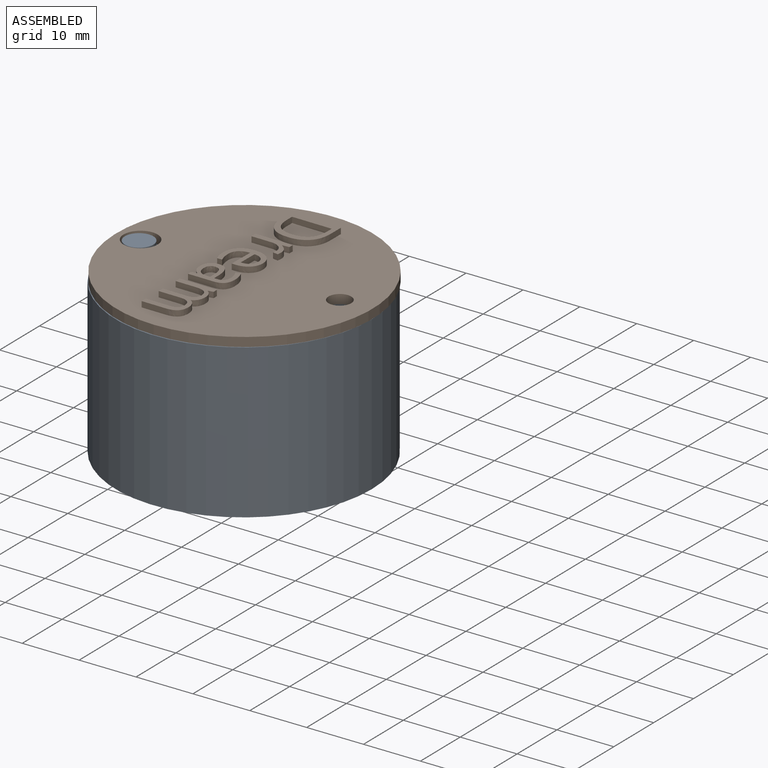
[diagram: assembled view]
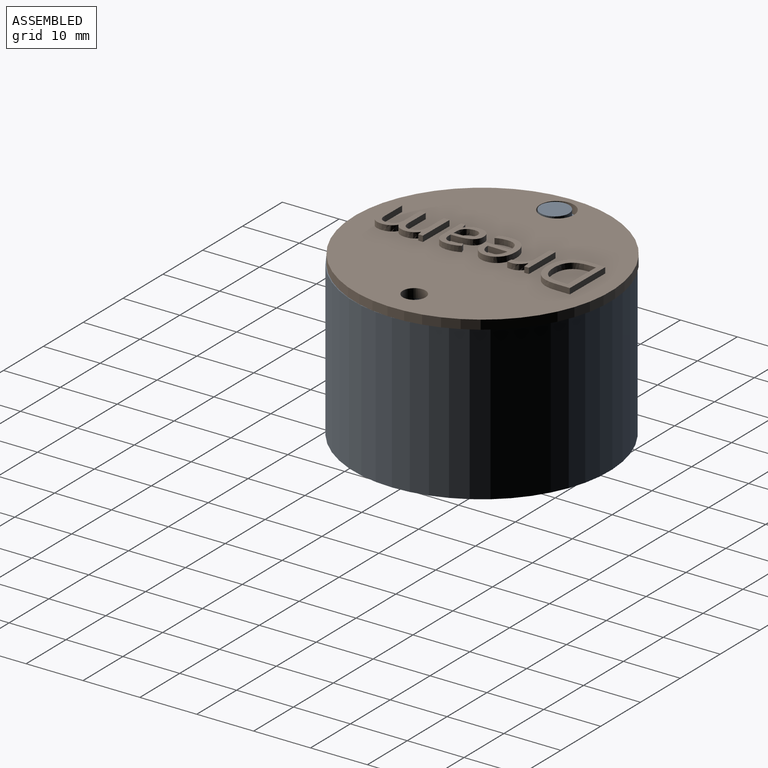
[diagram: assembled view, second angle]
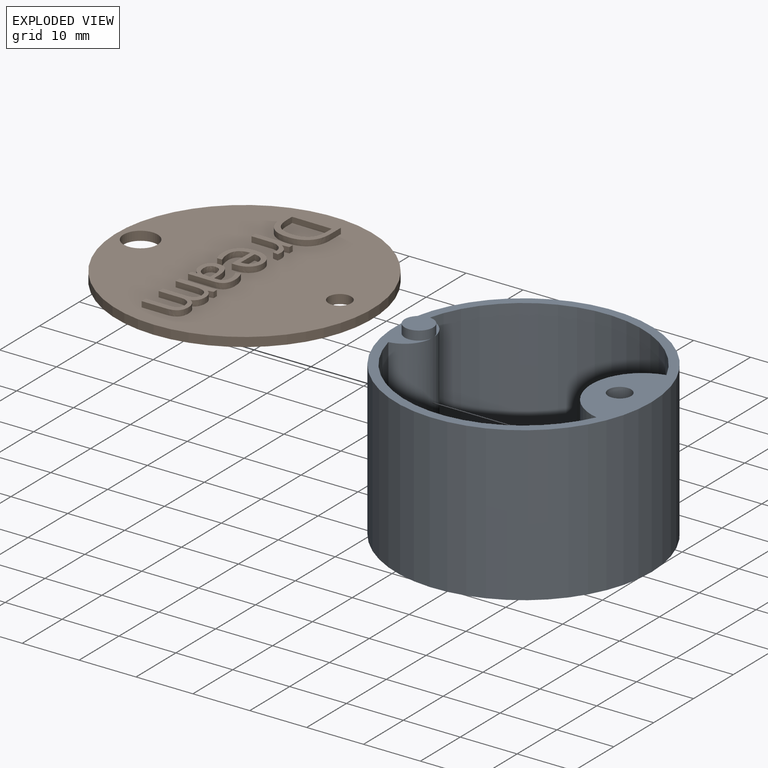
[diagram: exploded view]
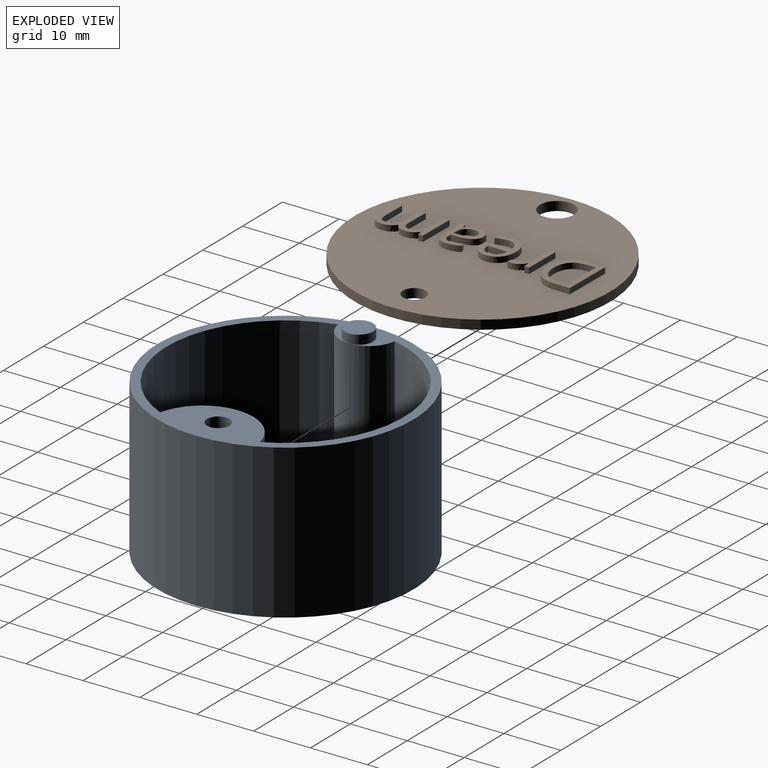
[diagram: exploded view, second angle]
ASSEMBLY  parts=2 mates=2
PART A: 13 faces, bbox 55x55x38.6 mm
  f0: cylinder r=2mm len=24mm, axis (0,0,-1), area 301.6mm2, adj f5,f12
  f1: cylinder r=20.9mm len=39.26mm, axis (0,0,1), area 1310mm2, adj f2,f5,f7,f8
  f2: plane 41.8x39.26mm, normal (0,0,1), area 1219.5mm2, adj f1,f3,f7,f8
  f3: cylinder r=20.9mm len=39.26mm, axis (0,0,1), area 1310mm2, adj f2,f5,f7,f8
  f4: plane 45x45mm, normal (0,0,-1), area 1540.2mm2, adj f6,f11
  f5: plane 45x45mm, normal (0,0,1), area 338.8mm2, adj f0,f1,f3,f6,f7,f8,f9
  f6: cylinder r=22.5mm len=45mm, axis (0,0,1), area 3817mm2, adj f4,f5
  f7: cylinder r=9mm len=25.4mm, axis (0,0,-1), area 619mm2, adj f1,f2,f3,f5
  f8: cylinder r=5mm len=25.4mm, axis (0,0,-1), area 368.5mm2, adj f1,f2,f3,f5
  f9: cylinder r=2.5mm len=5mm, axis (0,0,-1), area 25.1mm2, adj f5,f10
  f10: plane 15x15mm, normal (0,0,1), area 39.3mm2, adj f9
  f11: cylinder r=4mm len=8mm, axis (0,0,-1), area 75.4mm2, adj f4,f12
  f12: plane 8x8mm, normal (0,0,-1), area 37.7mm2, adj f0,f11
PART B: 114 faces, bbox 45x45x2.6 mm
  f0: plane 45x45mm, normal (0,0,1), area 1414.9mm2, adj f1,f2,f3,f11,f12,f13,f14,f15
  f1: cylinder r=2mm len=4mm, axis (0,0,-1), area 20.1mm2, adj f0,f4
  f2: cylinder r=3mm len=6mm, axis (0,0,-1), area 30.2mm2, adj f0,f4
  f3: cylinder r=22.5mm len=45mm, axis (0,0,-1), area 226.2mm2, adj f0,f4
  f4: plane 45x45mm, normal (0,0,-1), area 1549.6mm2, adj f1,f2,f3
  f5: extruded ~2.59x1mm, area 2.8mm2, adj f6,f18,f19,f20
  f6: extruded ~2.66x1mm, area 2.9mm2, adj f5,f7,f19,f20
  f7: extruded ~2.75x1mm, area 3mm2, adj f6,f8,f19,f20
  f8: plane 1.24x1mm, normal (0,1,0), area 1.2mm2, adj f7,f9,f19,f20
  f9: plane 7.02x1mm, normal (1,0,0), area 7mm2, adj f8,f10,f19,f20
  f10: plane 1.48x1mm, normal (0,-1,0), area 1.5mm2, adj f9,f18,f19,f20
  f11: extruded ~3.33x1.18mm, area 3.6mm2, adj f0,f12,f17,f19
  f12: extruded ~3.17x1.14mm, area 3.5mm2, adj f0,f11,f13,f19
  f13: extruded ~3.19x1.14mm, area 3.5mm2, adj f0,f12,f14,f19
  f14: plane 2.69x1mm, normal (0,1,0), area 2.7mm2, adj f0,f13,f15,f19
  f15: plane 8.79x1mm, normal (-1,0,0), area 8.8mm2, adj f0,f14,f16,f19
  f16: plane 2.44x1mm, normal (0,-1,0), area 2.4mm2, adj f0,f15,f17,f19
  f17: extruded ~3.4x1.15mm, area 3.7mm2, adj f0,f11,f16,f19
  f18: extruded ~2.56x1mm, area 2.8mm2, adj f5,f10,f19,f20
  f19: plane 8.79x7.01mm, normal (0,0,1), area 24.4mm2, adj f5,f6,f7,f8,f9,f10,f11,f12
  f20: plane 7.02x4.91mm, normal (0,0,1), area 30.3mm2, adj f5,f6,f7,f8,f9,f10,f18
  f21: extruded ~1x0.79mm, area 0.8mm2, adj f0,f22,f33,f34
  f22: extruded ~1.14x1mm, area 1.2mm2, adj f0,f21,f23,f34
  f23: extruded ~1x0.99mm, area 1.3mm2, adj f0,f22,f24,f34
  f24: plane 1x0.05mm, normal (0,1,0), area 0mm2, adj f0,f23,f25,f34
  f25: plane 1.22x1mm, normal (1,0.09,0), area 1.2mm2, adj f0,f24,f26,f34
  f26: plane 1x0.82mm, normal (0,1,0), area 0.8mm2, adj f0,f25,f27,f34
  f27: plane 6.59x1mm, normal (-1,0,0), area 6.6mm2, adj f0,f26,f28,f34
  f28: plane 1x1mm, normal (0,-1,0), area 1mm2, adj f0,f27,f29,f34
  f29: plane 3.54x1mm, normal (1,0,0), area 3.5mm2, adj f0,f28,f30,f34
  f30: extruded ~1.62x1mm, area 1.8mm2, adj f0,f29,f31,f34
  f31: extruded ~1.37x1mm, area 1.6mm2, adj f0,f30,f32,f34
  f32: extruded ~1x0.72mm, area 0.7mm2, adj f0,f31,f33,f34
  f33: plane 1x0.93mm, normal (0.99,-0.15,0), area 0.9mm2, adj f0,f21,f32,f34
  f34: plane 6.71x3.79mm, normal (0,0,1), area 9mm2, adj f21,f22,f23,f24,f25,f26,f27,f28
  f35: extruded ~1.26x1mm, area 1.4mm2, adj f36,f53,f54,f55
  f36: extruded ~1.2x1mm, area 1.3mm2, adj f35,f37,f54,f55
  f37: extruded ~1.44x1mm, area 1.5mm2, adj f36,f38,f54,f55
  f38: plane 3.44x1mm, normal (0,1,0), area 3.4mm2, adj f37,f53,f54,f55
  f39: extruded ~2.31x1mm, area 2.5mm2, adj f0,f40,f52,f54
  f40: extruded ~1.14x1mm, area 1.1mm2, adj f0,f39,f41,f54
  f41: extruded ~1x1mm, area 1.1mm2, adj f0,f40,f42,f54
  f42: plane 1x0.89mm, normal (1,0,0), area 0.9mm2, adj f0,f41,f43,f54
  f43: extruded ~2.1x1mm, area 2.2mm2, adj f0,f42,f44,f54
  f44: extruded ~1.57x1mm, area 1.7mm2, adj f0,f43,f45,f54
  f45: extruded ~1.76x1mm, area 1.9mm2, adj f0,f44,f46,f54
  f46: plane 4.54x1mm, normal (0,-1,0), area 4.5mm2, adj f0,f45,f47,f54
  f47: plane 1x0.63mm, normal (1,0,0), area 0.6mm2, adj f0,f46,f48,f54
  f48: extruded ~2.15x1mm, area 2.3mm2, adj f0,f47,f49,f54
  f49: extruded ~1.96x1mm, area 2.2mm2, adj f0,f48,f50,f54
  f50: extruded ~2.11x1mm, area 2.4mm2, adj f0,f49,f51,f54
  f51: extruded ~2.53x1mm, area 2.7mm2, adj f0,f50,f52,f54
  f52: extruded ~2.47x1mm, area 2.7mm2, adj f0,f39,f51,f54
  f53: extruded ~1.43x1mm, area 1.6mm2, adj f35,f38,f54,f55
  f54: plane 6.83x5.57mm, normal (0,0,1), area 17.3mm2, adj f35,f36,f37,f38,f39,f40,f41,f42
  f55: plane 3.44x1.95mm, normal (0,0,1), area 5.4mm2, adj f35,f36,f37,f38,f53
  f56: extruded ~1.46x1mm, area 1.6mm2, adj f57,f82,f83,f84
  f57: extruded ~1x0.92mm, area 1mm2, adj f56,f58,f83,f84
  f58: extruded ~1x0.82mm, area 0.9mm2, adj f57,f59,f83,f84
  f59: extruded ~1.02x1mm, area 1.2mm2, adj f58,f60,f83,f84
  f60: extruded ~1.72x1mm, area 1.8mm2, adj f59,f61,f83,f84
  f61: plane 1x1mm, normal (0.04,-1,0), area 1mm2, adj f60,f62,f83,f84
  f62: plane 1x0.59mm, normal (-1,0,0), area 0.6mm2, adj f61,f82,f83,f84
  f63: plane 1x0.94mm, normal (-0.98,-0.21,0), area 1mm2, adj f0,f64,f81,f83
  f64: plane 1x0.74mm, normal (0,-1,0), area 0.7mm2, adj f0,f63,f65,f83
  f65: plane 4.5x1mm, normal (1,0,0), area 4.5mm2, adj f0,f64,f66,f83
  f66: extruded ~1.68x1mm, area 1.8mm2, adj f0,f65,f67,f83
  f67: extruded ~1.75x1mm, area 1.9mm2, adj f0,f66,f68,f83
  f68: extruded ~1.16x1mm, area 1.2mm2, adj f0,f67,f69,f83
  f69: extruded ~1.07x1mm, area 1.1mm2, adj f0,f68,f70,f83
  f70: plane 1x0.76mm, normal (-0.93,-0.37,0), area 0.8mm2, adj f0,f69,f71,f83
  f71: extruded ~1.86x1mm, area 1.9mm2, adj f0,f70,f72,f83
  f72: extruded ~1.07x1mm, area 1.2mm2, adj f0,f71,f73,f83
  f73: extruded ~1.14x1mm, area 1.2mm2, adj f0,f72,f74,f83
  f74: plane 1x0.41mm, normal (-1,0,0), area 0.4mm2, adj f0,f73,f75,f83
  f75: plane 1.12x1mm, normal (-0.03,1,0), area 1.1mm2, adj f0,f74,f76,f83
  f76: extruded ~3.19x2.09mm, area 4.3mm2, adj f0,f75,f77,f83
  f77: extruded ~1.44x1mm, area 1.6mm2, adj f0,f76,f78,f83
  f78: extruded ~1.53x1mm, area 1.7mm2, adj f0,f77,f79,f83
  f79: extruded ~1.22x1mm, area 1.3mm2, adj f0,f78,f80,f83
  f80: extruded ~1x0.98mm, area 1.3mm2, adj f0,f79,f81,f83
  f81: plane 1x0.05mm, normal (0,-1,0), area 0mm2, adj f0,f63,f80,f83
  f82: extruded ~1.43x1mm, area 1.6mm2, adj f56,f62,f83,f84
  f83: plane 6.82x5.28mm, normal (0,0,1), area 17mm2, adj f56,f57,f58,f59,f60,f61,f62,f63
  f84: plane 3.24x2.54mm, normal (0,0,1), area 6.6mm2, adj f56,f57,f58,f59,f60,f61,f62,f82
  f85: plane 4.29x1mm, normal (-1,0,0), area 4.3mm2, adj f0,f86,f112,f113
  f86: plane 1x1mm, normal (0,-1,0), area 1mm2, adj f0,f85,f87,f113
  f87: plane 4.3x1mm, normal (1,0,0), area 4.3mm2, adj f0,f86,f88,f113
  f88: extruded ~1.84x1mm, area 2mm2, adj f0,f87,f89,f113
  f89: extruded ~1.67x1mm, area 1.8mm2, adj f0,f88,f90,f113
  f90: extruded ~1.27x1mm, area 1.3mm2, adj f0,f89,f91,f113
  f91: extruded ~1x0.85mm, area 1.2mm2, adj f0,f90,f92,f113
  f92: plane 1x0.05mm, normal (0,1,0), area 0mm2, adj f0,f91,f93,f113
  f93: extruded ~2.02x1.12mm, area 2.5mm2, adj f0,f92,f94,f113
  f94: extruded ~1.15x1mm, area 1.2mm2, adj f0,f93,f95,f113
  f95: extruded ~1x0.8mm, area 1.1mm2, adj f0,f94,f96,f113
  f96: plane 1x0.05mm, normal (0,1,0), area 0mm2, adj f0,f95,f97,f113
  f97: plane 1x0.9mm, normal (0.98,0.18,0), area 0.9mm2, adj f0,f96,f98,f113
  f98: plane 1x0.81mm, normal (0,1,0), area 0.8mm2, adj f0,f97,f99,f113
  f99: plane 6.59x1mm, normal (-1,0,0), area 6.6mm2, adj f0,f98,f100,f113
  f100: plane 1x1mm, normal (0,-1,0), area 1mm2, adj f0,f99,f101,f113
  f101: plane 3.46x1mm, normal (1,0,0), area 3.5mm2, adj f0,f100,f102,f113
  f102: extruded ~1.84x1mm, area 1.9mm2, adj f0,f101,f103,f113
  f103: extruded ~1.37x1mm, area 1.5mm2, adj f0,f102,f104,f113
  f104: extruded ~1.05x1mm, area 1.2mm2, adj f0,f103,f105,f113
  f105: extruded ~1.18x1mm, area 1.3mm2, adj f0,f104,f106,f113
  f106: plane 4.29x1mm, normal (-1,0,0), area 4.3mm2, adj f0,f105,f107,f113
  f107: plane 1x1mm, normal (0,-1,0), area 1mm2, adj f0,f106,f108,f113
  f108: plane 3.68x1mm, normal (1,0,0), area 3.7mm2, adj f0,f107,f109,f113
  f109: extruded ~1.65x1mm, area 1.7mm2, adj f0,f108,f110,f113
  f110: extruded ~1.38x1mm, area 1.5mm2, adj f0,f109,f111,f113
  f111: extruded ~1.05x1mm, area 1.2mm2, adj f0,f110,f112,f113
  f112: extruded ~1.18x1mm, area 1.3mm2, adj f0,f85,f111,f113
  f113: plane 9.39x6.71mm, normal (0,0,1), area 24.6mm2, adj f85,f86,f87,f88,f89,f90,f91,f92
PLACE A t=(-0.07,0,1.49)mm fixed
PLACE B rot(axis=(0,0,-1),90.6deg) t=(-0.07,0.18,28.49)mm
MATE cylindrical B.f1 <-> A.f0  axis (0,0,1) through (16.83,0,30.09)mm
MATE planar B.f4 <-> A.f5  axis (0,0,-1) through (0.13,0.18,28.49)mm
